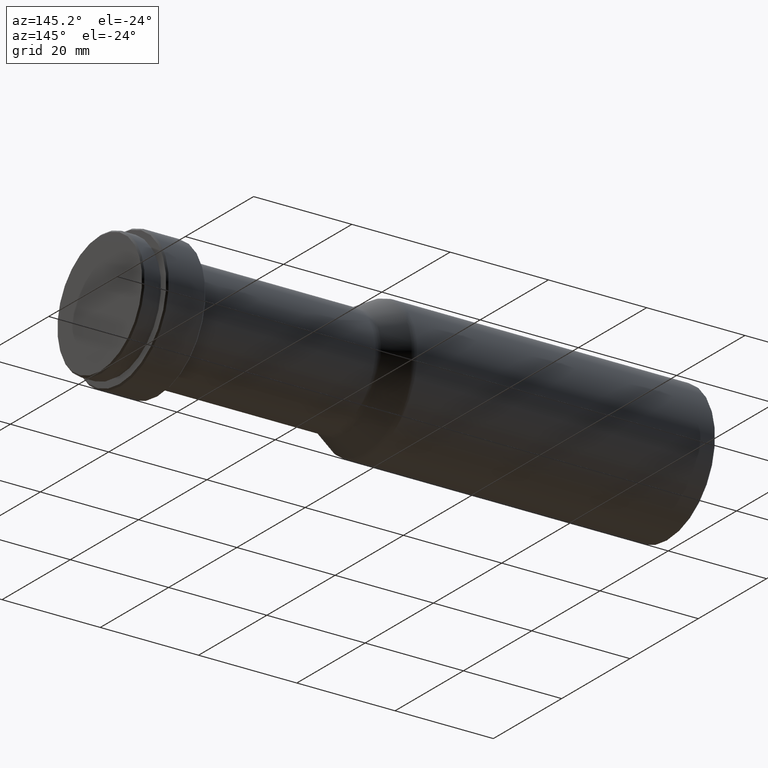
[diagram: clean part render]
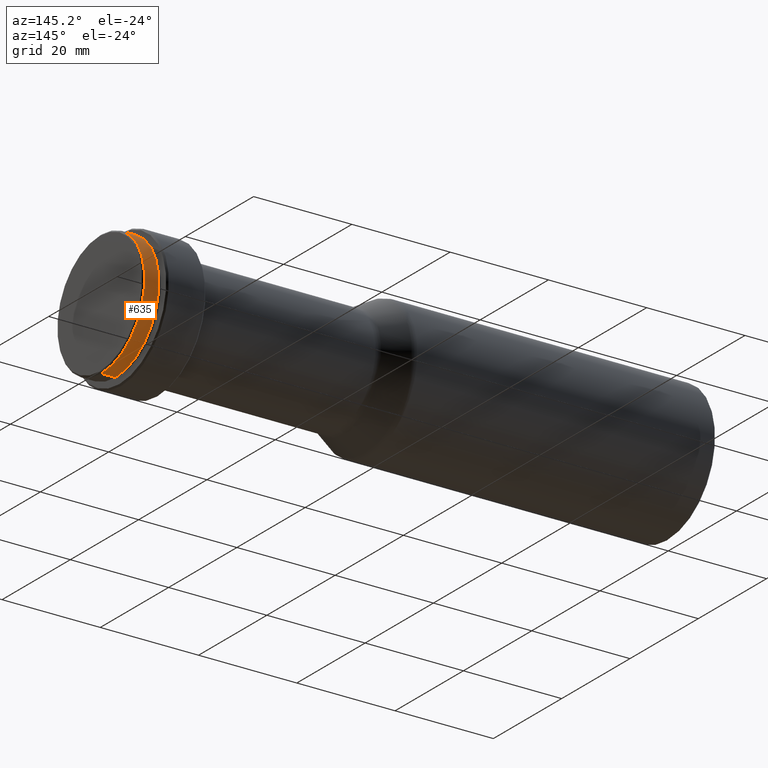
[diagram: same view with one face highlighted and labeled with its STEP entity id]
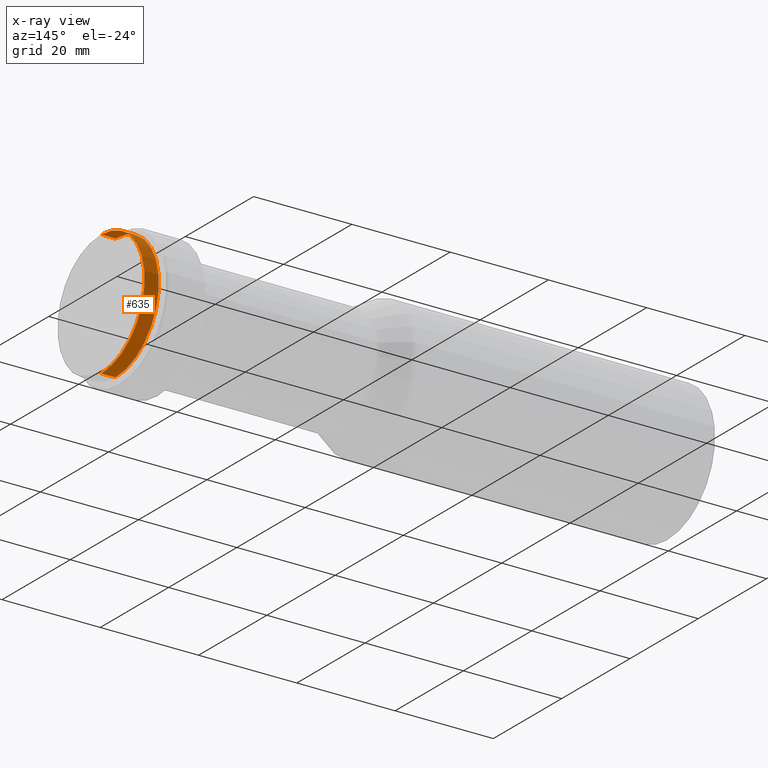
[diagram: x-ray of the same camera — body ghosted, the highlighted face saturated]
A machine part, auxiliary view. The second image highlights one B-rep face of the part: STEP entity #635.
The next image is the same camera in x-ray: the body ghosted, the highlighted face saturated — about 0% of this face is hidden behind the body in this view.
In plain terms, the highlighted cylindrical surface (partial cylindrical patch) has radius 12.7 mm, axis along (-1, -0, -0).
Its self-contained STEP definition (entity closure, byte-faithful):
#37 = CARTESIAN_POINT ( 'NONE',  ( 112.5000000000000000, 1.555301434917138600E-015, -12.70000000000000100 ) ) ;
#58 = LINE ( 'NONE', #546, #463 ) ;
#105 = VERTEX_POINT ( 'NONE', #37 ) ;
#122 = VERTEX_POINT ( 'NONE', #290 ) ;
#138 = CIRCLE ( 'NONE', #217, 12.70000000000000100 ) ;
#164 = ORIENTED_EDGE ( 'NONE', *, *, #470, .F. ) ;
#175 = DIRECTION ( 'NONE',  ( -1.000000000000000000, -0.0000000000000000000, -0.0000000000000000000 ) ) ;
#204 = EDGE_LOOP ( 'NONE', ( #598, #818, #236, #164 ) ) ;
#210 = CYLINDRICAL_SURFACE ( 'NONE', #513, 12.70000000000000100 ) ;
#217 = AXIS2_PLACEMENT_3D ( 'NONE', #311, #175, #563 ) ;
#219 = EDGE_CURVE ( 'NONE', #709, #393, #323, .T. ) ;
#236 = ORIENTED_EDGE ( 'NONE', *, *, #627, .F. ) ;
#247 = CARTESIAN_POINT ( 'NONE',  ( 115.4000000000000300, 0.0000000000000000000, 12.70000000000000100 ) ) ;
#266 = EDGE_CURVE ( 'NONE', #393, #105, #751, .T. ) ;
#290 = CARTESIAN_POINT ( 'NONE',  ( 112.5000000000000000, 0.0000000000000000000, 12.70000000000000100 ) ) ;
#306 = DIRECTION ( 'NONE',  ( 0.0000000000000000000, 0.0000000000000000000, 1.000000000000000000 ) ) ;
#310 = CARTESIAN_POINT ( 'NONE',  ( 0.0000000000000000000, 0.0000000000000000000, 0.0000000000000000000 ) ) ;
#311 = CARTESIAN_POINT ( 'NONE',  ( 112.5000000000000000, 0.0000000000000000000, 0.0000000000000000000 ) ) ;
#323 = CIRCLE ( 'NONE', #397, 12.70000000000000100 ) ;
#358 = CARTESIAN_POINT ( 'NONE',  ( 115.4000000000000300, 0.0000000000000000000, 0.0000000000000000000 ) ) ;
#393 = VERTEX_POINT ( 'NONE', #536 ) ;
#397 = AXIS2_PLACEMENT_3D ( 'NONE', #358, #792, #417 ) ;
#417 = DIRECTION ( 'NONE',  ( 0.0000000000000000000, 0.0000000000000000000, 1.000000000000000000 ) ) ;
#431 = DIRECTION ( 'NONE',  ( -1.000000000000000000, -0.0000000000000000000, -0.0000000000000000000 ) ) ;
#463 = VECTOR ( 'NONE', #658, 1000.000000000000000 ) ;
#470 = EDGE_CURVE ( 'NONE', #709, #122, #58, .T. ) ;
#503 = CARTESIAN_POINT ( 'NONE',  ( 0.0000000000000000000, 1.555301434917138600E-015, -12.70000000000000100 ) ) ;
#513 = AXIS2_PLACEMENT_3D ( 'NONE', #310, #622, #306 ) ;
#527 = FACE_OUTER_BOUND ( 'NONE', #204, .T. ) ;
#536 = CARTESIAN_POINT ( 'NONE',  ( 115.4000000000000300, 1.555301434917138600E-015, -12.70000000000000100 ) ) ;
#546 = CARTESIAN_POINT ( 'NONE',  ( 0.0000000000000000000, 0.0000000000000000000, 12.70000000000000100 ) ) ;
#563 = DIRECTION ( 'NONE',  ( 0.0000000000000000000, 0.0000000000000000000, 1.000000000000000000 ) ) ;
#598 = ORIENTED_EDGE ( 'NONE', *, *, #219, .T. ) ;
#622 = DIRECTION ( 'NONE',  ( -1.000000000000000000, -0.0000000000000000000, -0.0000000000000000000 ) ) ;
#627 = EDGE_CURVE ( 'NONE', #122, #105, #138, .T. ) ;
#635 = ADVANCED_FACE ( 'NONE', ( #527 ), #210, .T. ) ;
#658 = DIRECTION ( 'NONE',  ( -1.000000000000000000, -0.0000000000000000000, -0.0000000000000000000 ) ) ;
#662 = VECTOR ( 'NONE', #431, 1000.000000000000000 ) ;
#709 = VERTEX_POINT ( 'NONE', #247 ) ;
#751 = LINE ( 'NONE', #503, #662 ) ;
#792 = DIRECTION ( 'NONE',  ( -1.000000000000000000, -0.0000000000000000000, -0.0000000000000000000 ) ) ;
#818 = ORIENTED_EDGE ( 'NONE', *, *, #266, .T. ) ;